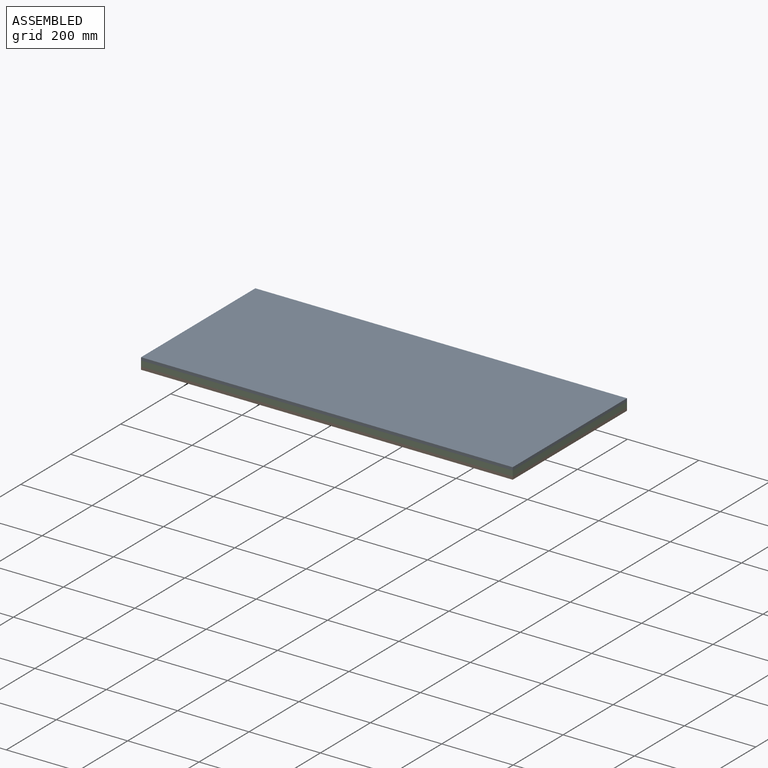
[diagram: assembled view]
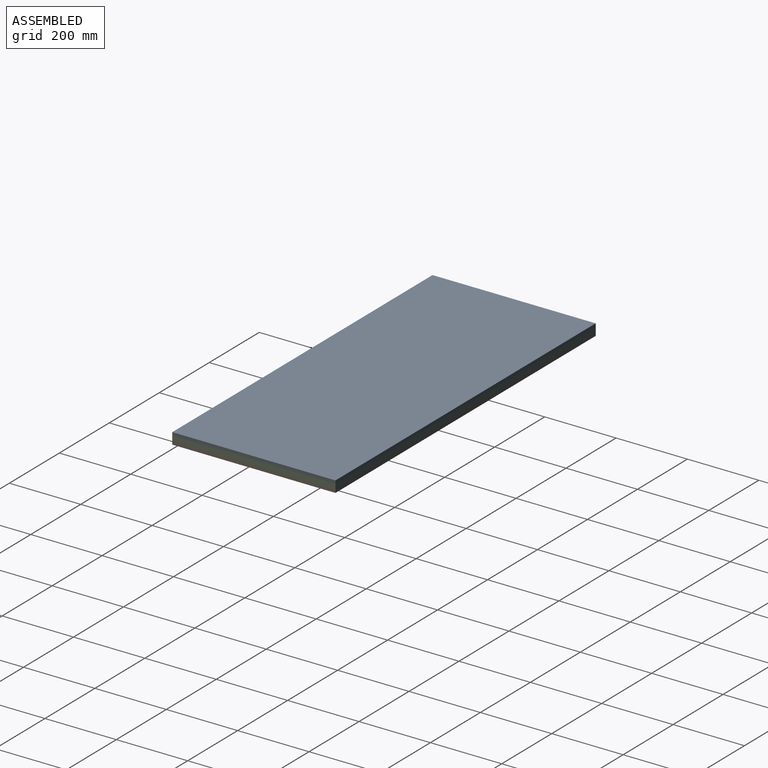
[diagram: assembled view, second angle]
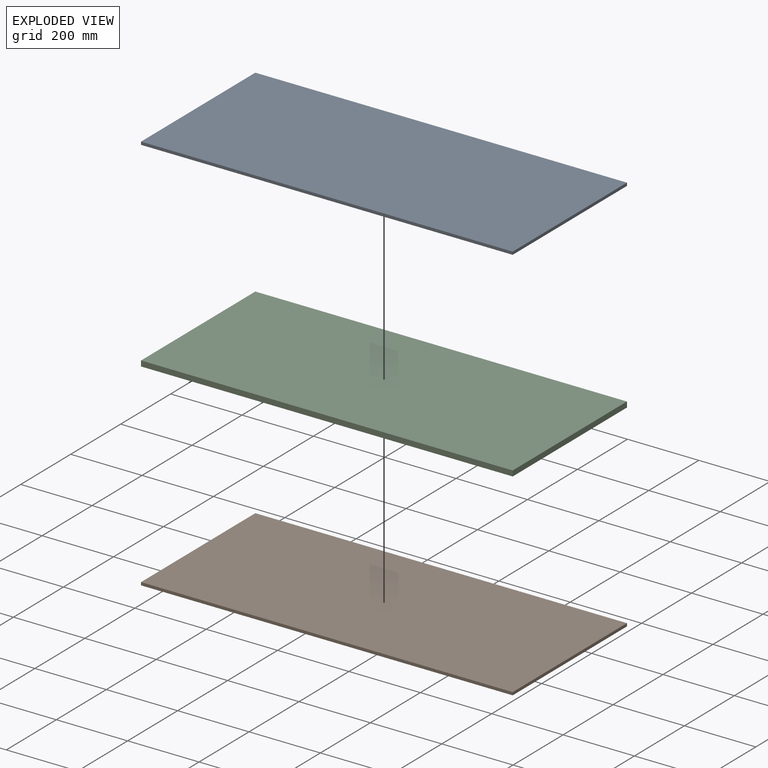
[diagram: exploded view]
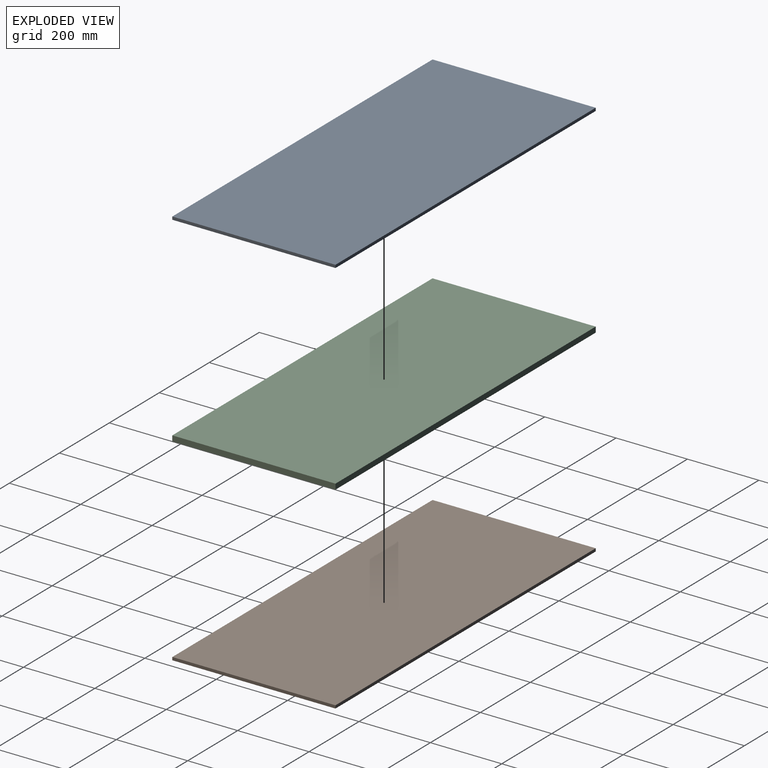
[diagram: exploded view, second angle]
ASSEMBLY  parts=3 mates=2
PART A: 6 faces, bbox 1041.4x457.2x8.3 mm
  f0: plane 1041.4x8.26mm, normal (0,1,0), area 8596.8mm2, adj f1,f3,f4,f5
  f1: plane 457.2x8.26mm, normal (-1,0,0), area 3774.2mm2, adj f0,f2,f4,f5
  f2: plane 1041.4x8.26mm, normal (0,-1,0), area 8596.8mm2, adj f1,f3,f4,f5
  f3: plane 457.2x8.26mm, normal (1,0,0), area 3774.2mm2, adj f0,f2,f4,f5
  f4: plane 1041.4x457.2mm, normal (0,0,1), area 476128.1mm2, adj f0,f1,f2,f3
  f5: plane 1041.4x457.2mm, normal (0,0,-1), area 476128.1mm2, adj f0,f1,f2,f3
PART B: same geometry as A
PART C: 6 faces, bbox 1041.4x457.2x15.2 mm
  f0: plane 1041.4x15.24mm, normal (0,1,0), area 15870.9mm2, adj f1,f3,f4,f5
  f1: plane 457.2x15.24mm, normal (-1,0,0), area 6967.7mm2, adj f0,f2,f4,f5
  f2: plane 1041.4x15.24mm, normal (0,-1,0), area 15870.9mm2, adj f1,f3,f4,f5
  f3: plane 457.2x15.24mm, normal (1,0,0), area 6967.7mm2, adj f0,f2,f4,f5
  f4: plane 1041.4x457.2mm, normal (0,0,1), area 476128.1mm2, adj f0,f1,f2,f3
  f5: plane 1041.4x457.2mm, normal (0,0,-1), area 476128.1mm2, adj f0,f1,f2,f3
PLACE A t=(37.96,56.02,65.09)mm
PLACE B t=(37.96,56.02,41.6)mm
PLACE C t=(37.96,56.02,49.85)mm
MATE fastened A.f5 <-> C.f4  axis (0,0,-1) through (-317.35,-692.11,65.09)mm
MATE fastened C.f5 <-> B.f4  axis (0,0,-1) through (-317.35,-692.11,49.85)mm
